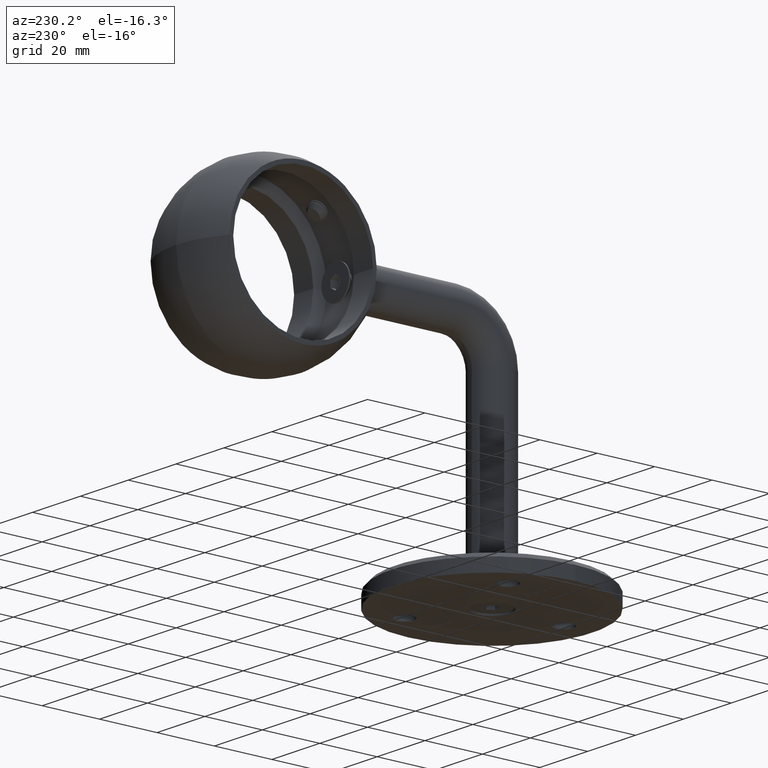
[diagram: clean part render]
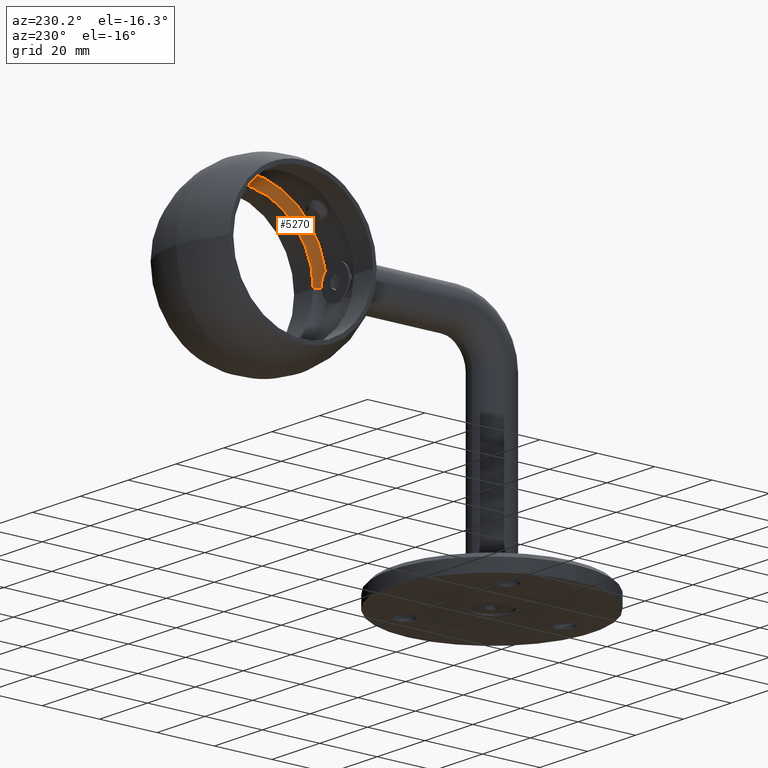
[diagram: same view with one face highlighted and labeled with its STEP entity id]
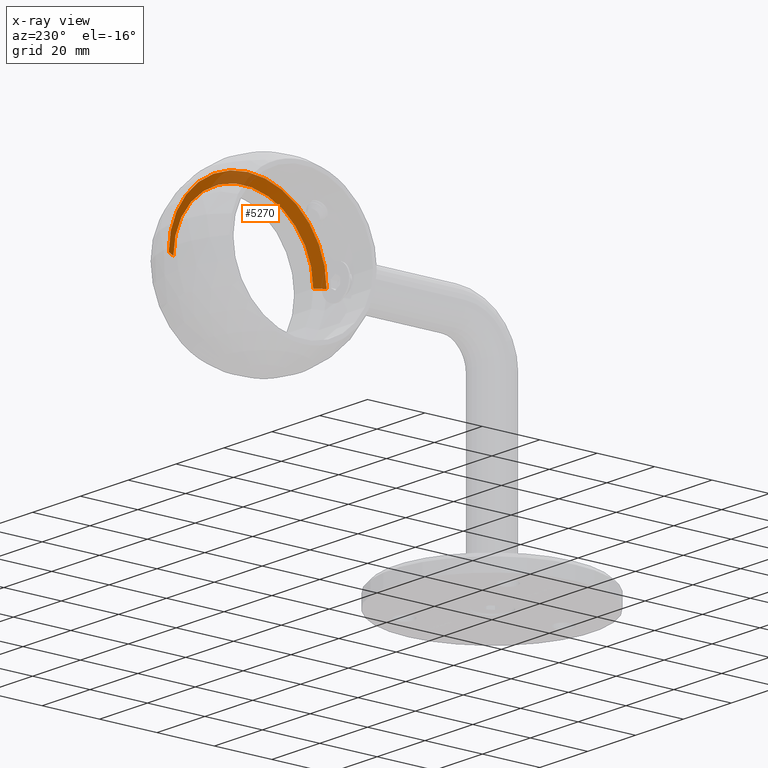
[diagram: x-ray of the same camera — body ghosted, the highlighted face saturated]
A machine part, auxiliary view. The second image highlights one B-rep face of the part: STEP entity #5270.
The next image is the same camera in x-ray: the body ghosted, the highlighted face saturated — about 15% of this face is hidden behind the body in this view.
In plain terms, the highlighted conical surface has half-angle 60 deg.
Its self-contained STEP definition (entity closure, byte-faithful):
#266 = CIRCLE ( 'NONE', #9829, 24.34999999999999787 ) ;
#402 = EDGE_CURVE ( 'NONE', #4446, #18048, #28776, .T. ) ;
#647 = DIRECTION ( 'NONE',  ( 0.000000000000000000, 2.102695122396109948E-16, -1.000000000000000000 ) ) ;
#3228 = CARTESIAN_POINT ( 'NONE',  ( 0.000000000000000000, 0.000000000000000000, -6.681346652052756241 ) ) ;
#3471 = CARTESIAN_POINT ( 'NONE',  ( 0.000000000000000000, 0.000000000000000000, -8.500000000000078160 ) ) ;
#4446 = VERTEX_POINT ( 'NONE', #23386 ) ;
#4743 = VECTOR ( 'NONE', #32447, 1000.000000000000114 ) ;
#5006 = EDGE_CURVE ( 'NONE', #25153, #7278, #21833, .T. ) ;
#5270 = ADVANCED_FACE ( 'NONE', ( #32480 ), #11027, .F. ) ;
#5945 = DIRECTION ( 'NONE',  ( 0.000000000000000000, 1.000000000000000000, 2.207829878515936683E-16 ) ) ;
#7021 = DIRECTION ( 'NONE',  ( 0.000000000000000000, -1.000000000000000000, -2.207829878515936683E-16 ) ) ;
#7063 = CARTESIAN_POINT ( 'NONE',  ( 0.000000000000000000, 24.34999999999999787, -8.500000000000072831 ) ) ;
#7138 = DIRECTION ( 'NONE',  ( 0.000000000000000000, -2.102695122396109948E-16, 1.000000000000000000 ) ) ;
#7278 = VERTEX_POINT ( 'NONE', #13307 ) ;
#8622 = CIRCLE ( 'NONE', #16824, 27.49999999999999645 ) ;
#9589 = CARTESIAN_POINT ( 'NONE',  ( 0.000000000000000000, 0.000000000000000000, -6.681346652052756241 ) ) ;
#9829 = AXIS2_PLACEMENT_3D ( 'NONE', #3471, #647, #27862 ) ;
#11027 = CONICAL_SURFACE ( 'NONE', #16666, 27.49999999999999645, 1.047197551196597409 ) ;
#13307 = CARTESIAN_POINT ( 'NONE',  ( 0.000000000000000000, 27.49999999999999645, -6.681346652052750024 ) ) ;
#14259 = EDGE_CURVE ( 'NONE', #25153, #4446, #266, .T. ) ;
#14916 = CARTESIAN_POINT ( 'NONE',  ( 3.367778697655252073E-15, -27.49999999999999645, -6.681346652052761570 ) ) ;
#16229 = EDGE_LOOP ( 'NONE', ( #27720, #19615, #30657, #16736 ) ) ;
#16281 = DIRECTION ( 'NONE',  ( 0.000000000000000000, 2.102695122396109948E-16, -1.000000000000000000 ) ) ;
#16666 = AXIS2_PLACEMENT_3D ( 'NONE', #9589, #7138, #7021 ) ;
#16736 = ORIENTED_EDGE ( 'NONE', *, *, #30808, .F. ) ;
#16824 = AXIS2_PLACEMENT_3D ( 'NONE', #3228, #16281, #5945 ) ;
#18048 = VERTEX_POINT ( 'NONE', #14916 ) ;
#18684 = CARTESIAN_POINT ( 'NONE',  ( 3.367778697655252073E-15, 27.49999999999999645, -6.681346652052750024 ) ) ;
#19011 = DIRECTION ( 'NONE',  ( 1.060575238724914064E-16, 0.8660254037844363761, 0.5000000000000039968 ) ) ;
#19615 = ORIENTED_EDGE ( 'NONE', *, *, #14259, .T. ) ;
#21833 = LINE ( 'NONE', #18684, #31996 ) ;
#22121 = CARTESIAN_POINT ( 'NONE',  ( 0.000000000000000000, -27.49999999999999645, -6.681346652052761570 ) ) ;
#23386 = CARTESIAN_POINT ( 'NONE',  ( 2.982014955923833043E-15, -24.35000000000000142, -8.500000000000083489 ) ) ;
#25153 = VERTEX_POINT ( 'NONE', #7063 ) ;
#27720 = ORIENTED_EDGE ( 'NONE', *, *, #5006, .F. ) ;
#27862 = DIRECTION ( 'NONE',  ( 0.000000000000000000, 1.000000000000000000, 2.137236315371836409E-16 ) ) ;
#28776 = LINE ( 'NONE', #22121, #4743 ) ;
#30657 = ORIENTED_EDGE ( 'NONE', *, *, #402, .T. ) ;
#30808 = EDGE_CURVE ( 'NONE', #7278, #18048, #8622, .T. ) ;
#31996 = VECTOR ( 'NONE', #19011, 999.9999999999998863 ) ;
#32447 = DIRECTION ( 'NONE',  ( 0.000000000000000000, -0.8660254037844365982, 0.5000000000000035527 ) ) ;
#32480 = FACE_OUTER_BOUND ( 'NONE', #16229, .T. ) ;